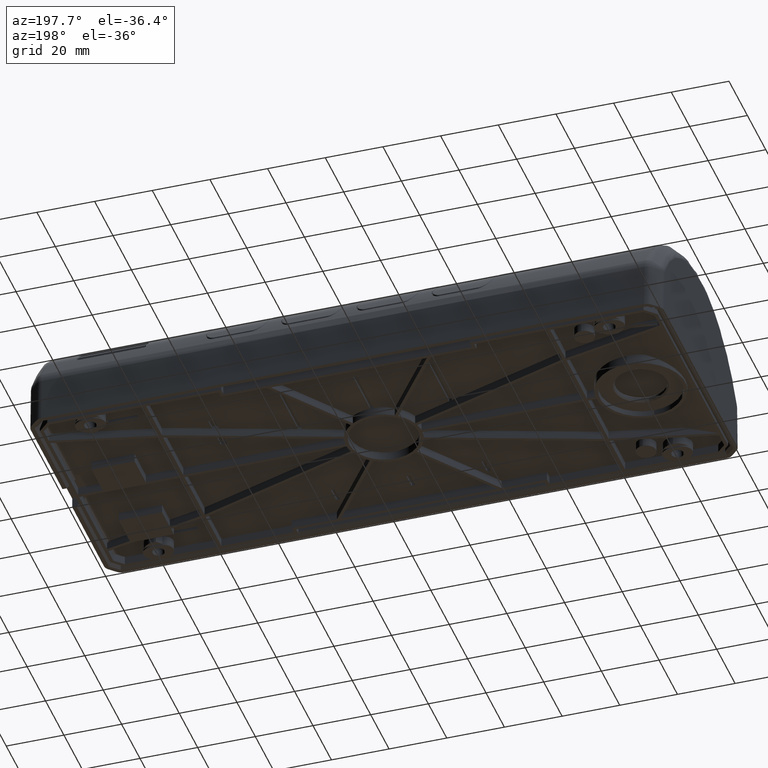
[diagram: clean part render]
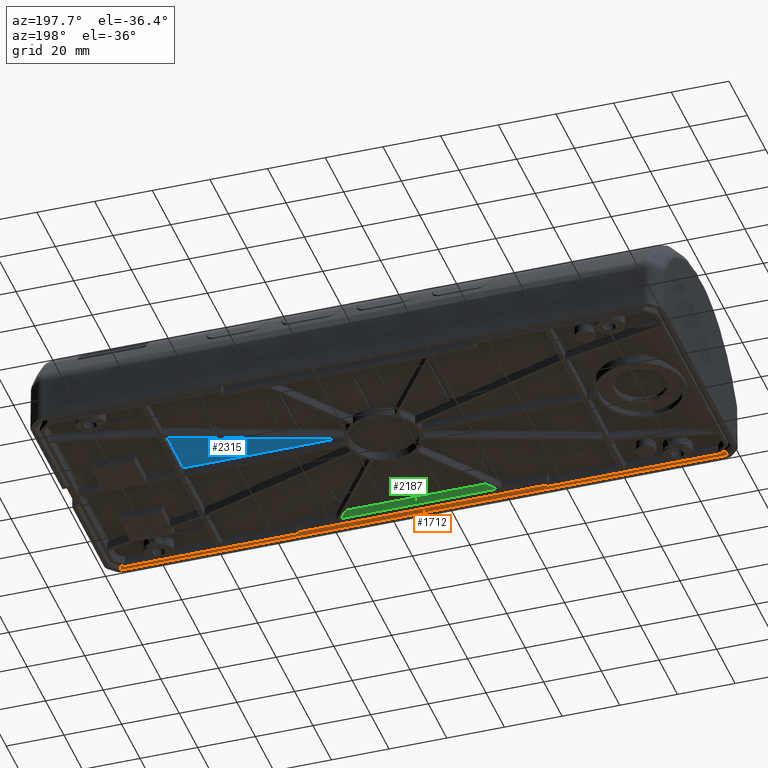
[diagram: same view with three faces highlighted in distinct colors, each labeled with its STEP entity id]
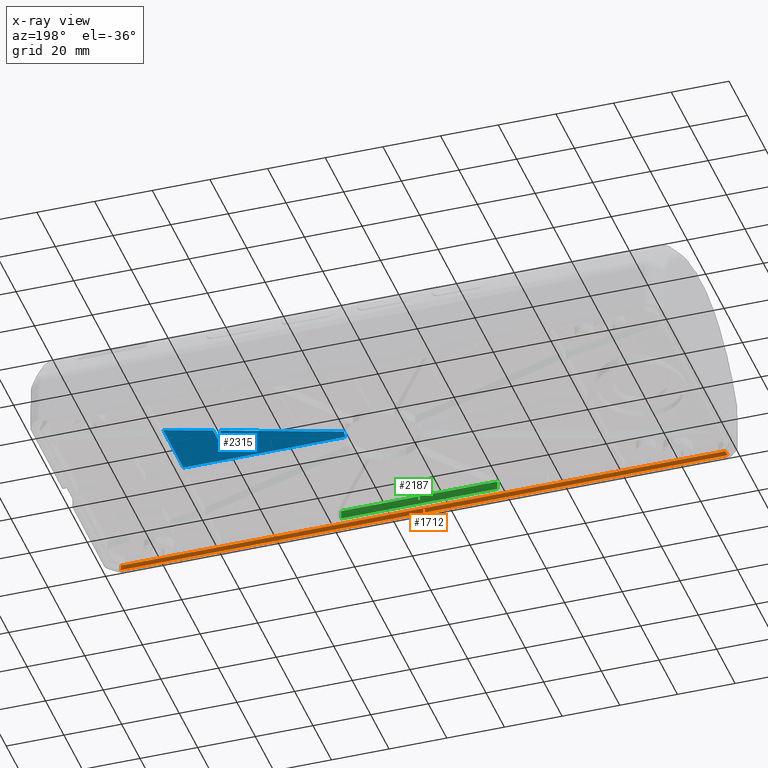
[diagram: x-ray of the same camera — body ghosted, the three highlighted faces saturated]
A machine part, auxiliary view with three faces highlighted in distinct colors.
The next image is the same camera in x-ray (body ghosted, the three faces saturated) — at least one of them is partly hidden behind the body in this view.
Their STEP definitions:

[orange] entity #1712 — the highlighted planar face has unit normal (0, 0.6947, -0.7193).
#1009=B_SPLINE_CURVE_WITH_KNOTS('',3,(#19269,#19270,#19271,#19272),.UNSPECIFIED.,
 .F.,.F.,(4,4),(0.,1.),.UNSPECIFIED.);
#1010=B_SPLINE_CURVE_WITH_KNOTS('',3,(#19274,#19275,#19276,#19277),.UNSPECIFIED.,
 .F.,.F.,(4,4),(0.,1.),.UNSPECIFIED.);
#1027=B_SPLINE_CURVE_WITH_KNOTS('',3,(#19384,#19385,#19386,#19387),.UNSPECIFIED.,
 .F.,.F.,(4,4),(0.,1.),.UNSPECIFIED.);
#1028=B_SPLINE_CURVE_WITH_KNOTS('',3,(#19389,#19390,#19391,#19392),.UNSPECIFIED.,
 .F.,.F.,(4,4),(0.,1.),.UNSPECIFIED.);
#1035=B_SPLINE_CURVE_WITH_KNOTS('',3,(#19427,#19428,#19429,#19430),.UNSPECIFIED.,
 .F.,.F.,(4,4),(0.,1.),.UNSPECIFIED.);
#1036=B_SPLINE_CURVE_WITH_KNOTS('',3,(#19431,#19432,#19433,#19434),.UNSPECIFIED.,
 .F.,.F.,(4,4),(0.,1.),.UNSPECIFIED.);
#1712=ADVANCED_FACE('',(#2947),#2541,.T.);
#2541=PLANE('',#14527);
#2947=FACE_OUTER_BOUND('',#3756,.T.);
#3756=EDGE_LOOP('',(#4748,#4749,#4750,#4751,#4752,#4753));
#4748=ORIENTED_EDGE('',*,*,#10403,.T.);
#4749=ORIENTED_EDGE('',*,*,#10402,.T.);
#4750=ORIENTED_EDGE('',*,*,#10412,.F.);
#4751=ORIENTED_EDGE('',*,*,#10385,.F.);
#4752=ORIENTED_EDGE('',*,*,#10384,.F.);
#4753=ORIENTED_EDGE('',*,*,#10413,.T.);
#9004=VERTEX_POINT('',#19268);
#9005=VERTEX_POINT('',#19273);
#9006=VERTEX_POINT('',#19278);
#9020=VERTEX_POINT('',#19383);
#9021=VERTEX_POINT('',#19388);
#9022=VERTEX_POINT('',#19393);
#10384=EDGE_CURVE('',#9004,#9005,#1009,.T.);
#10385=EDGE_CURVE('',#9005,#9006,#1010,.T.);
#10402=EDGE_CURVE('',#9021,#9020,#1027,.T.);
#10403=EDGE_CURVE('',#9022,#9021,#1028,.T.);
#10412=EDGE_CURVE('',#9006,#9020,#1035,.T.);
#10413=EDGE_CURVE('',#9004,#9022,#1036,.T.);
#14527=AXIS2_PLACEMENT_3D('',#19435,#15764,#15765);
#15764=DIRECTION('',(0.,0.694658370458992,-0.719339800338656));
#15765=DIRECTION('',(0.,0.719339800338656,0.694658370458992));
#19268=CARTESIAN_POINT('',(-54.5143920506261,-43.4984761392561,1.25));
#19269=CARTESIAN_POINT('',(-54.5143920506261,-43.4984761392561,1.25));
#19270=CARTESIAN_POINT('',(-28.1429280337499,-43.4984761392561,1.25));
#19271=CARTESIAN_POINT('',(-1.77146401687374,-43.4984761392561,1.25));
#19272=CARTESIAN_POINT('',(24.6000000000025,-43.4984761392561,1.25));
#19273=CARTESIAN_POINT('',(24.6000000000025,-43.4984761392561,1.25000000000001));
#19274=CARTESIAN_POINT('',(24.6000000000025,-43.4984761392561,1.25));
#19275=CARTESIAN_POINT('',(68.3714640168787,-43.4984761392561,1.25));
#19276=CARTESIAN_POINT('',(112.142928033755,-43.4984761392561,1.25));
#19277=CARTESIAN_POINT('',(155.914392050631,-43.4984761392561,1.25));
#19278=CARTESIAN_POINT('',(155.914392050631,-43.4984761392561,1.25000000000001));
#19383=CARTESIAN_POINT('',(155.500215407985,-42.4635713235461,2.24954314346463));
#19384=CARTESIAN_POINT('',(24.6000000000025,-42.4635766425536,2.2493908270191));
#19385=CARTESIAN_POINT('',(68.2334769386579,-42.4635766425536,2.2493908270191));
#19386=CARTESIAN_POINT('',(111.866953877313,-42.4635766425536,2.2493908270191));
#19387=CARTESIAN_POINT('',(155.500430815969,-42.4635766425536,2.2493908270191));
#19388=CARTESIAN_POINT('',(24.6000000000025,-42.4635766425536,2.2493908270191));
#19389=CARTESIAN_POINT('',(-54.1004308159636,-42.4635766425536,2.2493908270191));
#19390=CARTESIAN_POINT('',(-27.8669538773083,-42.4635766425536,2.2493908270191));
#19391=CARTESIAN_POINT('',(-1.63347693865292,-42.4635766425536,2.2493908270191));
#19392=CARTESIAN_POINT('',(24.6000000000024,-42.4635766425536,2.2493908270191));
#19393=CARTESIAN_POINT('',(-54.1002154079806,-42.4635713235461,2.24954314346462));
#19427=CARTESIAN_POINT('',(155.914392050631,-43.4984761392561,1.25000000000001));
#19428=CARTESIAN_POINT('',(155.77640497241,-43.1535096403552,1.58313027567304));
#19429=CARTESIAN_POINT('',(155.638417894189,-42.8085431414544,1.91626055134608));
#19430=CARTESIAN_POINT('',(155.500430815969,-42.4635766425536,2.24939082701911));
#19431=CARTESIAN_POINT('',(-54.5143920506261,-43.4984761392561,1.25000000000001));
#19432=CARTESIAN_POINT('',(-54.3764049724053,-43.1535096403552,1.58313027567304));
#19433=CARTESIAN_POINT('',(-54.2384178941845,-42.8085431414544,1.91626055134607));
#19434=CARTESIAN_POINT('',(-54.1004308159637,-42.4635766425536,2.2493908270191));
#19435=CARTESIAN_POINT('',(131.900000000002,-42.9810263909048,1.74969541350955));

[blue] entity #2315 — the highlighted planar face has unit normal (0, 0, -1).
#545=CIRCLE('',#15341,13.2);
#575=CIRCLE('',#15380,0.3);
#576=CIRCLE('',#15381,0.3);
#577=CIRCLE('',#15382,0.3);
#578=CIRCLE('',#15383,0.3);
#2315=ADVANCED_FACE('',(#3539),#2773,.T.);
#2773=PLANE('',#15384);
#3539=FACE_OUTER_BOUND('',#4379,.T.);
#4379=EDGE_LOOP('',(#7703,#7704,#7705,#7706,#7707,#7708,#7709,#7710,#7711,
#7712,#7713,#7714));
#7703=ORIENTED_EDGE('',*,*,#11979,.F.);
#7704=ORIENTED_EDGE('',*,*,#11980,.F.);
#7705=ORIENTED_EDGE('',*,*,#11981,.F.);
#7706=ORIENTED_EDGE('',*,*,#11982,.F.);
#7707=ORIENTED_EDGE('',*,*,#11983,.F.);
#7708=ORIENTED_EDGE('',*,*,#11984,.F.);
#7709=ORIENTED_EDGE('',*,*,#11985,.F.);
#7710=ORIENTED_EDGE('',*,*,#11986,.F.);
#7711=ORIENTED_EDGE('',*,*,#11987,.F.);
#7712=ORIENTED_EDGE('',*,*,#11917,.F.);
#7713=ORIENTED_EDGE('',*,*,#11671,.F.);
#7714=ORIENTED_EDGE('',*,*,#11920,.F.);
#9813=VERTEX_POINT('',#39810);
#9814=VERTEX_POINT('',#39811);
#9972=VERTEX_POINT('',#40309);
#9974=VERTEX_POINT('',#40315);
#10024=VERTEX_POINT('',#40433);
#10025=VERTEX_POINT('',#40435);
#10026=VERTEX_POINT('',#40437);
#10027=VERTEX_POINT('',#40439);
#10028=VERTEX_POINT('',#40441);
#10029=VERTEX_POINT('',#40443);
#10030=VERTEX_POINT('',#40445);
#10031=VERTEX_POINT('',#40447);
#11671=EDGE_CURVE('',#9813,#9814,#12875,.T.);
#11917=EDGE_CURVE('',#9814,#9972,#13057,.T.);
#11920=EDGE_CURVE('',#9974,#9813,#545,.T.);
#11979=EDGE_CURVE('',#10024,#9974,#13089,.T.);
#11980=EDGE_CURVE('',#10025,#10024,#13090,.T.);
#11981=EDGE_CURVE('',#10026,#10025,#575,.T.);
#11982=EDGE_CURVE('',#10027,#10026,#576,.T.);
#11983=EDGE_CURVE('',#10028,#10027,#13091,.T.);
#11984=EDGE_CURVE('',#10029,#10028,#577,.T.);
#11985=EDGE_CURVE('',#10030,#10029,#578,.T.);
#11986=EDGE_CURVE('',#10031,#10030,#13092,.T.);
#11987=EDGE_CURVE('',#9972,#10031,#13093,.T.);
#12875=LINE('',#39809,#13914);
#13057=LINE('',#40308,#14096);
#13089=LINE('',#40432,#14128);
#13090=LINE('',#40434,#14129);
#13091=LINE('',#40440,#14130);
#13092=LINE('',#40446,#14131);
#13093=LINE('',#40448,#14132);
#13914=VECTOR('',#17444,1.);
#14096=VECTOR('',#17942,1.);
#14128=VECTOR('',#18054,1.);
#14129=VECTOR('',#18055,1.);
#14130=VECTOR('',#18060,1.);
#14131=VECTOR('',#18065,1.);
#14132=VECTOR('',#18066,1.);
#15341=AXIS2_PLACEMENT_3D('',#40314,#17947,#17948);
#15380=AXIS2_PLACEMENT_3D('',#40436,#18056,#18057);
#15381=AXIS2_PLACEMENT_3D('',#40438,#18058,#18059);
#15382=AXIS2_PLACEMENT_3D('',#40442,#18061,#18062);
#15383=AXIS2_PLACEMENT_3D('',#40444,#18063,#18064);
#15384=AXIS2_PLACEMENT_3D('',#40449,#18067,#18068);
#17444=DIRECTION('',(1.,0.,0.));
#17942=DIRECTION('',(0.,1.,0.));
#17947=DIRECTION('',(0.,0.,-1.));
#17948=DIRECTION('',(1.,0.,0.));
#18054=DIRECTION('',(-0.948323655206199,-0.317304656405092,0.));
#18055=DIRECTION('',(0.,1.,0.));
#18056=DIRECTION('',(0.,0.,-1.));
#18057=DIRECTION('',(-0.707106781186508,-0.707106781186566,0.));
#18058=DIRECTION('',(0.,0.,-1.));
#18059=DIRECTION('',(-0.707106781186508,-0.707106781186566,0.));
#18060=DIRECTION('',(-1.,0.,0.));
#18061=DIRECTION('',(0.,0.,-1.));
#18062=DIRECTION('',(0.707106781186508,-0.707106781186566,0.));
#18063=DIRECTION('',(0.,0.,-1.));
#18064=DIRECTION('',(0.707106781186508,-0.707106781186566,0.));
#18065=DIRECTION('',(0.,-1.,0.));
#18066=DIRECTION('',(-0.948323655206199,-0.317304656405092,0.));
#18067=DIRECTION('',(0.,0.,-1.));
#18068=DIRECTION('',(0.,1.,0.));
#39809=CARTESIAN_POINT('',(63.886356585504,0.601523860743951,4.25));
#39810=CARTESIAN_POINT('',(63.886356585504,0.601523860743951,4.25));
#39811=CARTESIAN_POINT('',(120.100000000002,0.601523860743945,4.25));
#40308=CARTESIAN_POINT('',(120.100000000002,0.601523860743945,4.25));
#40309=CARTESIAN_POINT('',(120.100000000002,22.5897436493305,4.25));
#40314=CARTESIAN_POINT('',(50.7000000000025,0.00152386074393687,4.25));
#40315=CARTESIAN_POINT('',(63.3953166698607,3.61662201321782,4.25));
#40432=CARTESIAN_POINT('',(102.300000000002,16.6339469621936,4.25));
#40433=CARTESIAN_POINT('',(102.300000000002,16.6339469621936,4.25));
#40434=CARTESIAN_POINT('',(102.300000000002,9.30152386074393,4.25));
#40435=CARTESIAN_POINT('',(102.300000000002,9.30152386074393,4.25));
#40436=CARTESIAN_POINT('',(102.600000000002,9.30152386074393,4.25));
#40437=CARTESIAN_POINT('',(102.387867965647,9.08939182638796,4.25));
#40438=CARTESIAN_POINT('',(102.600000000002,9.30152386074393,4.25));
#40439=CARTESIAN_POINT('',(102.600000000002,9.00152386074393,4.25));
#40440=CARTESIAN_POINT('',(104.100000000002,9.00152386074393,4.25));
#40441=CARTESIAN_POINT('',(104.100000000002,9.00152386074393,4.25));
#40442=CARTESIAN_POINT('',(104.100000000002,9.30152386074393,4.25));
#40443=CARTESIAN_POINT('',(104.312132034358,9.08939182638796,4.25));
#40444=CARTESIAN_POINT('',(104.100000000002,9.30152386074393,4.25));
#40445=CARTESIAN_POINT('',(104.400000000002,9.30152386074393,4.25));
#40446=CARTESIAN_POINT('',(104.400000000002,17.3365971331479,4.25));
#40447=CARTESIAN_POINT('',(104.400000000002,17.3365971331479,4.25));
#40448=CARTESIAN_POINT('',(120.100000000002,22.5897436493305,4.25));
#40449=CARTESIAN_POINT('',(50.7000000000025,0.00152386074392646,4.25));

[green] entity #2187 — the highlighted planar face has unit normal (0, 1, 0).
#2187=ADVANCED_FACE('',(#3416),#2692,.T.);
#2692=PLANE('',#15139);
#3416=FACE_OUTER_BOUND('',#4246,.T.);
#4246=EDGE_LOOP('',(#7067,#7068,#7069,#7070));
#7067=ORIENTED_EDGE('',*,*,#11606,.T.);
#7068=ORIENTED_EDGE('',*,*,#11605,.T.);
#7069=ORIENTED_EDGE('',*,*,#11607,.T.);
#7070=ORIENTED_EDGE('',*,*,#11608,.T.);
#9767=VERTEX_POINT('',#39670);
#9770=VERTEX_POINT('',#39675);
#9771=VERTEX_POINT('',#39679);
#9772=VERTEX_POINT('',#39681);
#11605=EDGE_CURVE('',#9767,#9770,#12828,.T.);
#11606=EDGE_CURVE('',#9771,#9767,#12829,.T.);
#11607=EDGE_CURVE('',#9770,#9772,#12830,.T.);
#11608=EDGE_CURVE('',#9772,#9771,#12831,.T.);
#12828=LINE('',#39676,#13867);
#12829=LINE('',#39678,#13868);
#12830=LINE('',#39680,#13869);
#12831=LINE('',#39682,#13870);
#13867=VECTOR('',#17309,1.);
#13868=VECTOR('',#17312,1.);
#13869=VECTOR('',#17313,1.);
#13870=VECTOR('',#17314,1.);
#15139=AXIS2_PLACEMENT_3D('',#39683,#17315,#17316);
#17309=DIRECTION('',(0.,0.,-1.));
#17312=DIRECTION('',(1.,0.,0.));
#17313=DIRECTION('',(-1.,0.,0.));
#17314=DIRECTION('',(0.,0.,1.));
#17315=DIRECTION('',(0.,1.,0.));
#17316=DIRECTION('',(0.,0.,1.));
#39670=CARTESIAN_POINT('',(77.7849380361079,-38.2984761392561,4.25));
#39675=CARTESIAN_POINT('',(77.7849380361079,-38.2984761392561,1.25));
#39676=CARTESIAN_POINT('',(77.7849380361079,-38.2984761392561,4.25));
#39678=CARTESIAN_POINT('',(23.615061963897,-38.2984761392561,4.25));
#39679=CARTESIAN_POINT('',(23.615061963897,-38.2984761392561,4.25));
#39680=CARTESIAN_POINT('',(77.7849380361079,-38.2984761392561,1.25));
#39681=CARTESIAN_POINT('',(23.615061963897,-38.2984761392561,1.25));
#39682=CARTESIAN_POINT('',(23.615061963897,-38.2984761392561,1.25));
#39683=CARTESIAN_POINT('',(42.1500000000025,-38.2984761392561,4.75));